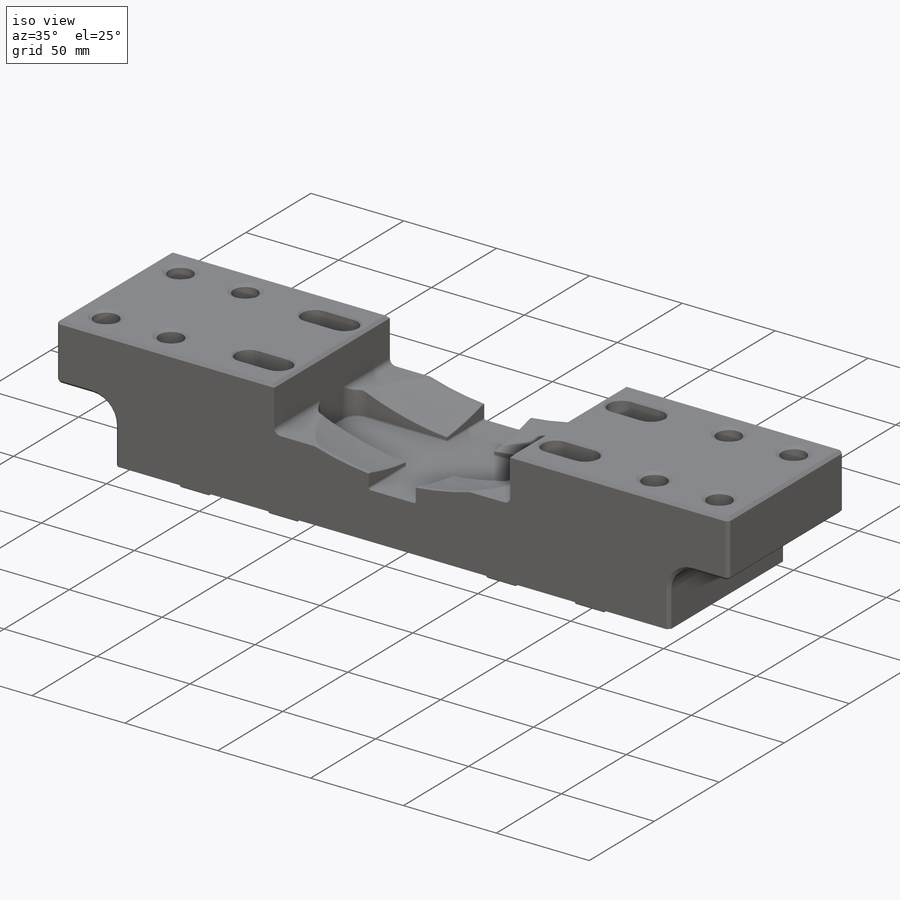
[diagram: iso view]
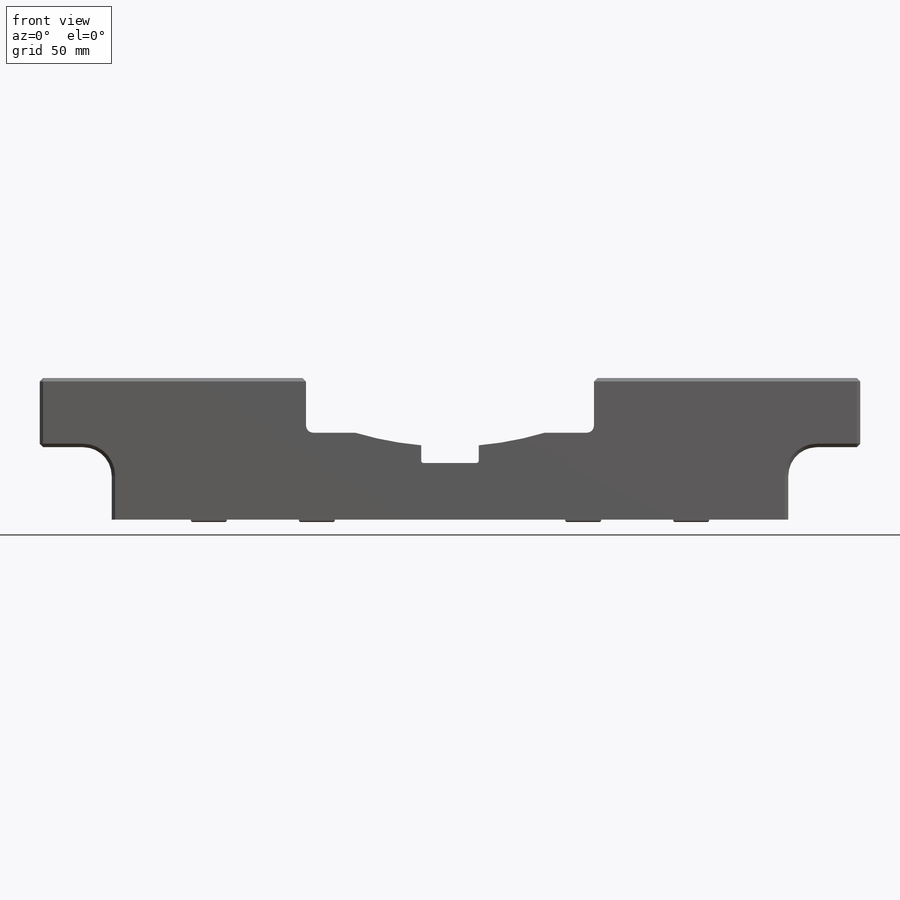
[diagram: front view]
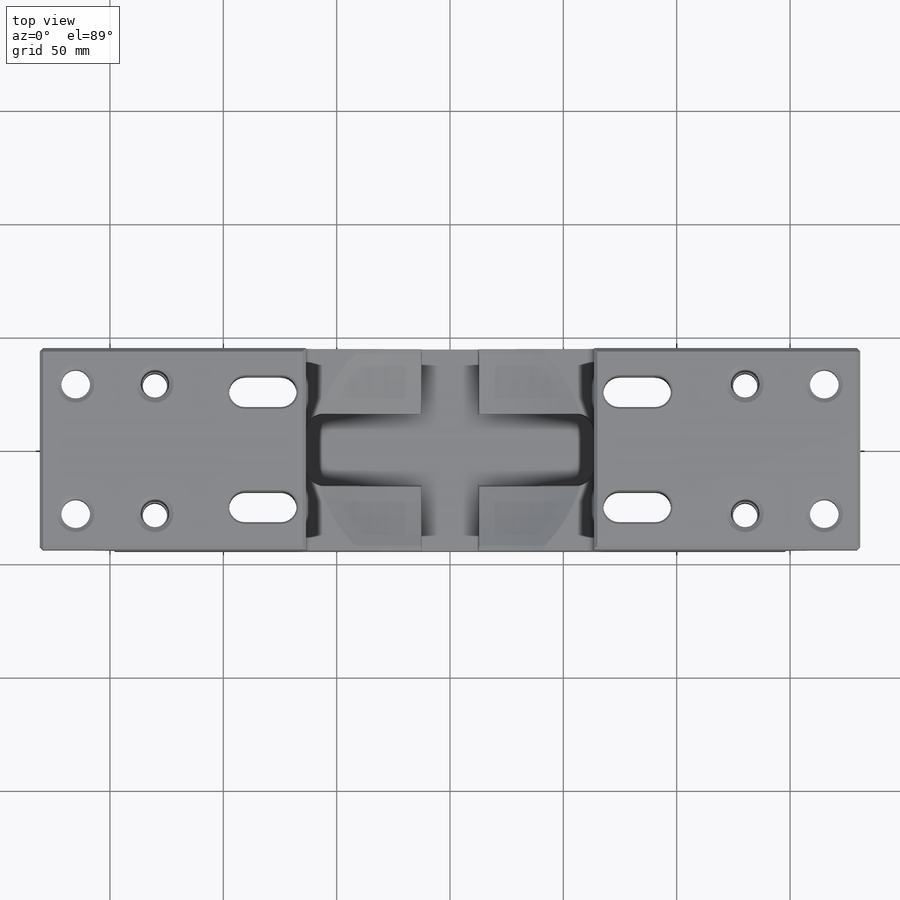
[diagram: top view]
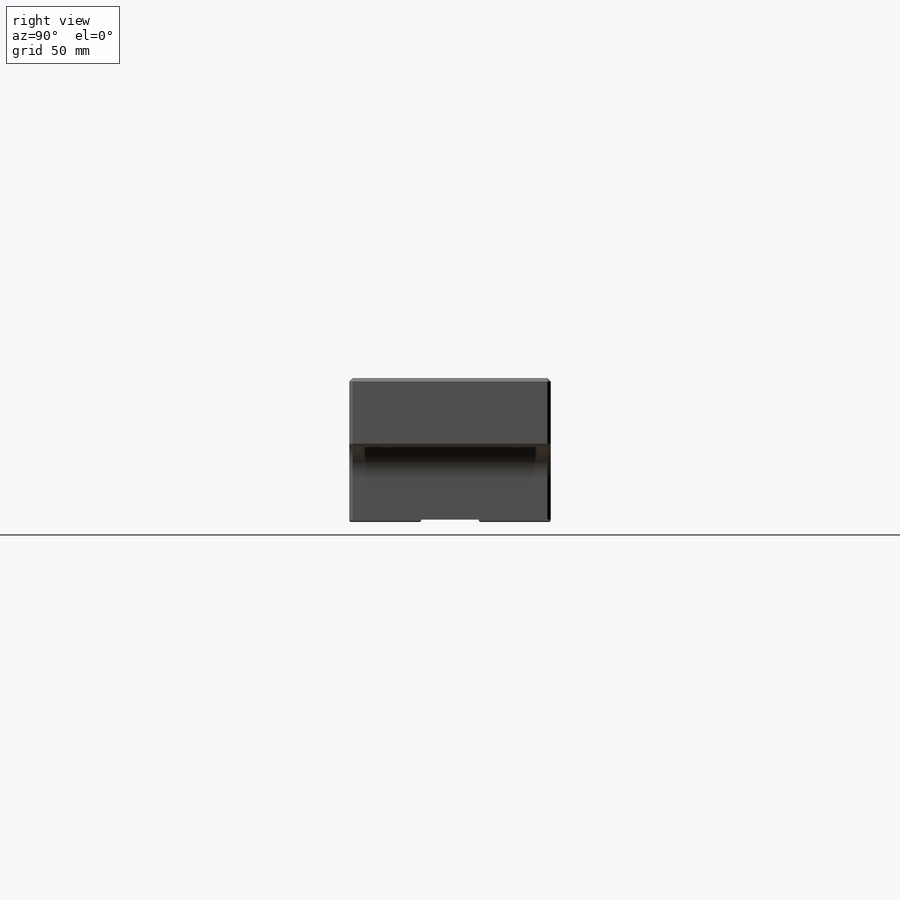
[diagram: right view]
SOLIDWORKS PART (.sldprt)
format: sldprt  version: not decoded by parser v0  size: 850,944 bytes
history: native  units: mm
features: sketch x10, cut_extrude x6, fillet x5, chamfer x3, material x1, extrude x1, cut_revolve x1, hole x1 + 1 further entry (+14 scaffold rows collapsed)
feature tree (43):
  scaffold x14  (default folders/planes/origin — collapsed)
  material  "303 SSTL"
  "Origin"  ID=-1
  sketch  "Sketch1"  dims[D1=361.95mm D2=63.5mm]
  extrude  "Extrude1"  Depth=88.9mm
  sketch  "Sketch2"  dims[c1.D2=152.4mm c1.D1=27.305mm c1.D3=127.0mm c2.D1=27.305mm]
  cut_revolve  "Cut-Revolve1"  Angle=360deg
  sketch  "Sketch3"  dims[D1=24.13mm]
  cut_extrude  "Extrude2"  [1 undecoded]
  sketch  "Sketch4"  dims[D1=31.75mm D2=25.4mm]
  cut_extrude  "Extrude4"  Depth=37.465mm
  sketch  "Sketch5"  dims[D1=33.02mm D2=298.45mm]
  cut_extrude  "Extrude5"  [1 undecoded]
  sketch  "Sketch6"  dims[D1=31.75mm D2=15.875mm D3=25.4mm D4=101.6mm]
  cut_extrude  "Extrude6"  Depth=1.016mm
  fillet  "Fillet1"  Radius=12.7mm
  fillet  "Fillet2"  Radius=7.62mm
  fillet  "Fillet3"  Radius=3.175mm
  fillet  "Fillet4"  Radius=1.016mm
  hole  "1/2-13 Tapped Hole1"  Diameter=10.71626mm Depth=63.5mm
  sketch  "Sketch8"  dims[D1=34.925mm D2=57.15mm D3=260.35mm]
  sketch  "Sketch7"  dims[hole-wizard template sketch: 42 standard entries collapsed; hole parameters kept: c12.Thru Tap Drill Depth=63.5mm c12.Thread Major Dia.=12.7mm c12.Thread Depth=38.1mm c12.Near C'Sink Dia.=16.51mm c12.D6=~4.399409mm c12.Near C'Sink Angle=120.0deg]
  sketch  "Sketch9"  dims[D1=50.8mm D2=13.97mm D3=165.1mm D4=15.875mm]
  cut_extrude  "Extrude7"  [1 undecoded]
  sketch  "Sketch10"  dims[D1=292.1mm D2=179.324mm]
  cut_extrude  "Extrude8"  [1 undecoded]
  chamfer  "Chamfer1"  Distance=0.762mm Angle=45deg
  chamfer  "Chamfer2"  Distance=1.524mm Angle=45deg
  chamfer  "Chamfer3"  Distance=0.508mm Angle=45deg
  fillet  "Fillet5"  Radius=0.508mm
decode coverage: 23 of 27 modeling features carry decoded parameters; 1 rows unclassified (native names shown)
note: ~ marks probable driven/reference dimensions
note: 4 parameter values undecoded
summary: no parameter record found for 4 features
note: suppression state not decoded; provenance and decode notes live in map.json
